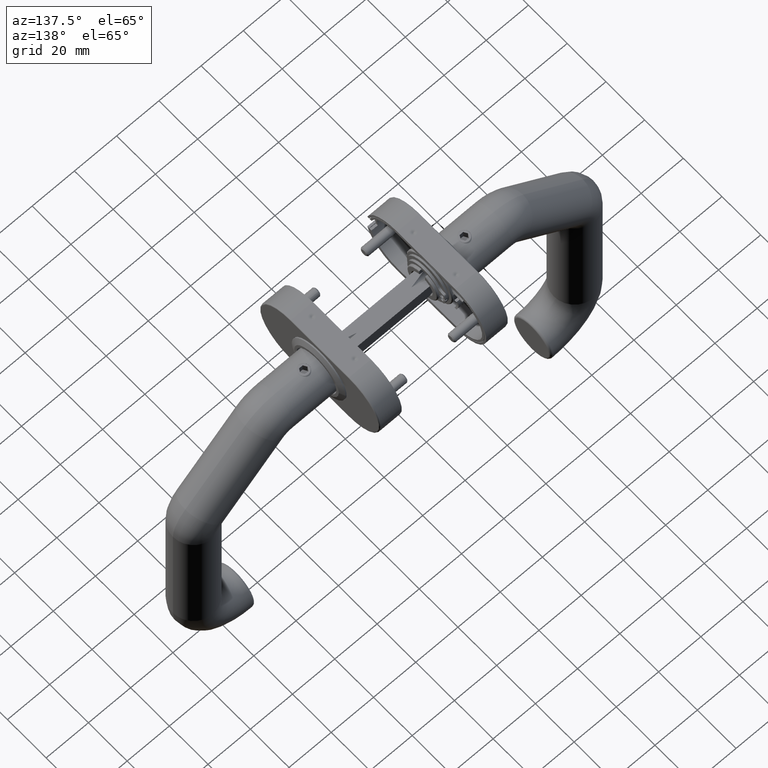
[diagram: clean part render]
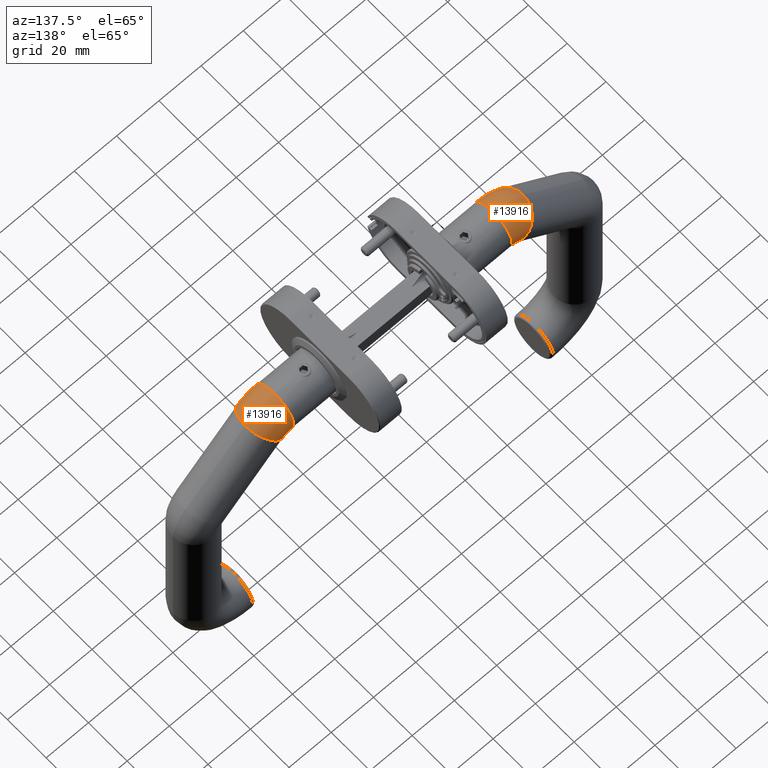
[diagram: same view with one multi-face feature highlighted, each face labeled with its STEP entity id]
A machine part, auxiliary view. The highlighted faces form ONE feature: a constant-radius fillet chain: 2 tangent blend faces with common blend radius 9.8 mm. The faces share edges in the B-rep.
Their STEP definitions:
[1] entity #13916 (Torus):
#641 = AXIS2_PLACEMENT_3D ( 'NONE', #10456, #2532, #901 ) ;
#753 = EDGE_LOOP ( 'NONE', ( #7435 ) ) ;
#901 = DIRECTION ( 'NONE',  ( 0.000000000000000000, 0.000000000000000000, -1.000000000000000000 ) ) ;
#1390 = EDGE_CURVE ( 'NONE', #12795, #12795, #21080, .T. ) ;
#1563 = VERTEX_POINT ( 'NONE', #12487 ) ;
#1645 = CIRCLE ( 'NONE', #17949, 9.799999999999998934 ) ;
#2532 = DIRECTION ( 'NONE',  ( -0.000000000000000000, -1.000000000000000000, -0.000000000000000000 ) ) ;
#3959 = DIRECTION ( 'NONE',  ( -0.7071067811865475727, 0.000000000000000000, 0.7071067811865474617 ) ) ;
#5620 = EDGE_LOOP ( 'NONE', ( #9114 ) ) ;
#6257 = DIRECTION ( 'NONE',  ( 0.000000000000000000, 0.000000000000000000, 1.000000000000000000 ) ) ;
#6834 = CARTESIAN_POINT ( 'NONE',  ( -9.799999999999993605, 0.000000000000000000, -48.28427124746190202 ) ) ;
#7435 = ORIENTED_EDGE ( 'NONE', *, *, #1390, .T. ) ;
#7495 = CARTESIAN_POINT ( 'NONE',  ( 8.673617379884035472E-15, 0.000000000000000000, -48.28427124746190202 ) ) ;
#7845 = TOROIDAL_SURFACE ( 'NONE', #641, 10.20000000000000639, 9.800000000000002487 ) ;
#8943 = EDGE_CURVE ( 'NONE', #1563, #1563, #1645, .T. ) ;
#9114 = ORIENTED_EDGE ( 'NONE', *, *, #8943, .F. ) ;
#10300 = CARTESIAN_POINT ( 'NONE',  ( -12.78751083189720994, 0.000000000000000000, -41.07178207935911018 ) ) ;
#10456 = CARTESIAN_POINT ( 'NONE',  ( -20.00000000000000000, 0.000000000000000000, -48.28427124746190202 ) ) ;
#10749 = AXIS2_PLACEMENT_3D ( 'NONE', #6834, #6257, #18291 ) ;
#12487 = CARTESIAN_POINT ( 'NONE',  ( -5.857864376269041884, 0.000000000000000000, -34.14213562373094391 ) ) ;
#12795 = VERTEX_POINT ( 'NONE', #7495 ) ;
#13760 = DIRECTION ( 'NONE',  ( 0.7071067811865477948, 0.000000000000000000, 0.7071067811865474617 ) ) ;
#13916 = ADVANCED_FACE ( 'NONE', ( #15269, #20914 ), #7845, .T. ) ;
#15269 = FACE_OUTER_BOUND ( 'NONE', #753, .T. ) ;
#17949 = AXIS2_PLACEMENT_3D ( 'NONE', #10300, #3959, #13760 ) ;
#18291 = DIRECTION ( 'NONE',  ( 1.000000000000000000, 0.000000000000000000, 0.000000000000000000 ) ) ;
#20914 = FACE_OUTER_BOUND ( 'NONE', #5620, .T. ) ;
#21080 = CIRCLE ( 'NONE', #10749, 9.800000000000002487 ) ;
[2] entity #13916 (Torus):
#641 = AXIS2_PLACEMENT_3D ( 'NONE', #10456, #2532, #901 ) ;
#753 = EDGE_LOOP ( 'NONE', ( #7435 ) ) ;
#901 = DIRECTION ( 'NONE',  ( 0.000000000000000000, 0.000000000000000000, -1.000000000000000000 ) ) ;
#1390 = EDGE_CURVE ( 'NONE', #12795, #12795, #21080, .T. ) ;
#1563 = VERTEX_POINT ( 'NONE', #12487 ) ;
#1645 = CIRCLE ( 'NONE', #17949, 9.799999999999998934 ) ;
#2532 = DIRECTION ( 'NONE',  ( -0.000000000000000000, -1.000000000000000000, -0.000000000000000000 ) ) ;
#3959 = DIRECTION ( 'NONE',  ( -0.7071067811865475727, 0.000000000000000000, 0.7071067811865474617 ) ) ;
#5620 = EDGE_LOOP ( 'NONE', ( #9114 ) ) ;
#6257 = DIRECTION ( 'NONE',  ( 0.000000000000000000, 0.000000000000000000, 1.000000000000000000 ) ) ;
#6834 = CARTESIAN_POINT ( 'NONE',  ( -9.799999999999993605, 0.000000000000000000, -48.28427124746190202 ) ) ;
#7435 = ORIENTED_EDGE ( 'NONE', *, *, #1390, .T. ) ;
#7495 = CARTESIAN_POINT ( 'NONE',  ( 8.673617379884035472E-15, 0.000000000000000000, -48.28427124746190202 ) ) ;
#7845 = TOROIDAL_SURFACE ( 'NONE', #641, 10.20000000000000639, 9.800000000000002487 ) ;
#8943 = EDGE_CURVE ( 'NONE', #1563, #1563, #1645, .T. ) ;
#9114 = ORIENTED_EDGE ( 'NONE', *, *, #8943, .F. ) ;
#10300 = CARTESIAN_POINT ( 'NONE',  ( -12.78751083189720994, 0.000000000000000000, -41.07178207935911018 ) ) ;
#10456 = CARTESIAN_POINT ( 'NONE',  ( -20.00000000000000000, 0.000000000000000000, -48.28427124746190202 ) ) ;
#10749 = AXIS2_PLACEMENT_3D ( 'NONE', #6834, #6257, #18291 ) ;
#12487 = CARTESIAN_POINT ( 'NONE',  ( -5.857864376269041884, 0.000000000000000000, -34.14213562373094391 ) ) ;
#12795 = VERTEX_POINT ( 'NONE', #7495 ) ;
#13760 = DIRECTION ( 'NONE',  ( 0.7071067811865477948, 0.000000000000000000, 0.7071067811865474617 ) ) ;
#13916 = ADVANCED_FACE ( 'NONE', ( #15269, #20914 ), #7845, .T. ) ;
#15269 = FACE_OUTER_BOUND ( 'NONE', #753, .T. ) ;
#17949 = AXIS2_PLACEMENT_3D ( 'NONE', #10300, #3959, #13760 ) ;
#18291 = DIRECTION ( 'NONE',  ( 1.000000000000000000, 0.000000000000000000, 0.000000000000000000 ) ) ;
#20914 = FACE_OUTER_BOUND ( 'NONE', #5620, .T. ) ;
#21080 = CIRCLE ( 'NONE', #10749, 9.800000000000002487 ) ;